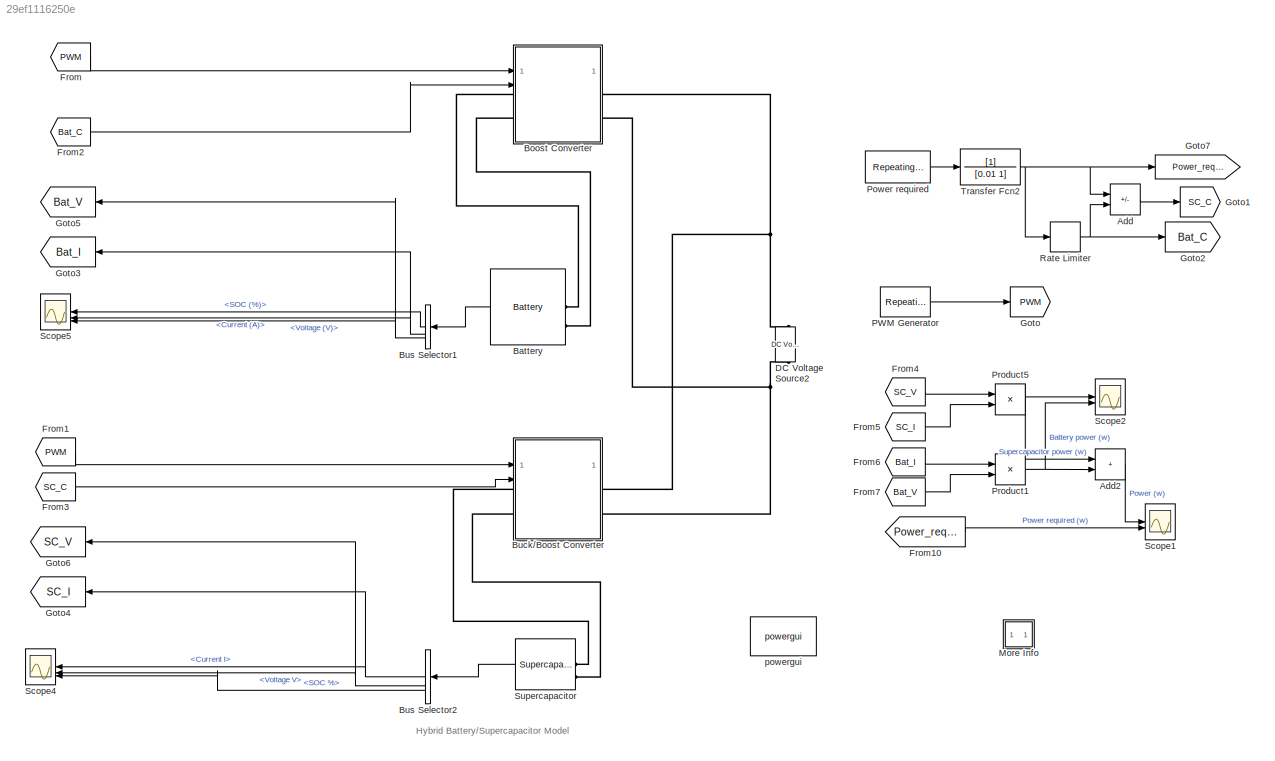
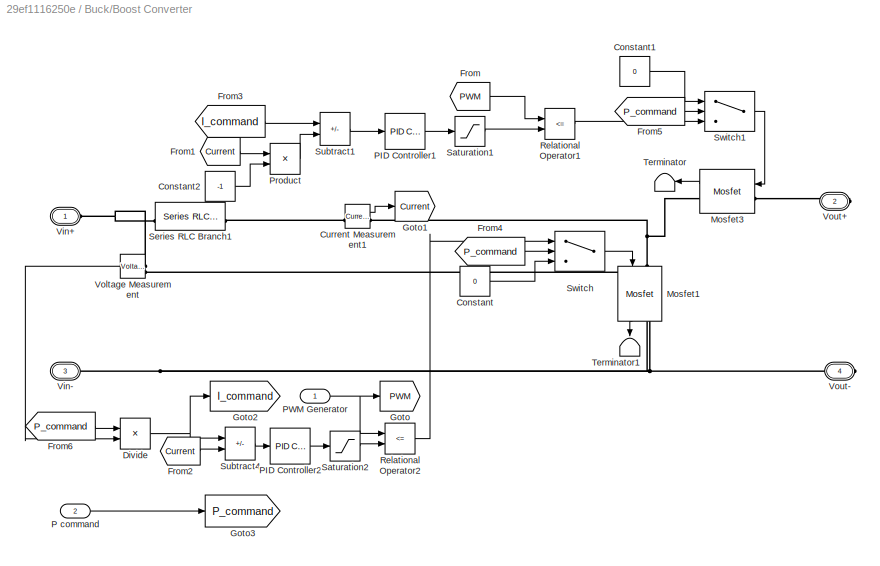
MODEL slx_29ef1116250e
KIND model
CONFIG AbsTol = auto
CONFIG EnableMultiTasking = on
CONFIG FixedStep = auto
CONFIG MaxStep = auto
CONFIG MinStep = auto
CONFIG RelTol = 1e-3
CONFIG SampleTimeConstraint = Unconstrained
CONFIG SolverName = ode23s
CONFIG StartTime = 0.0
CONFIG StopTime = 2000
BLOCK [Sum] Add
  IconShape = rectangular
  Inputs = +-
BLOCK [Sum] Add2
  IconShape = rectangular
BLOCK [Reference] Battery  REF=spsBatteryLib/Battery
  LibrarySourceBlock = electricdrivelib/Extra Sources/Battery
  SourceBlock = spsBatteryLib/Battery
  SourceType = Battery
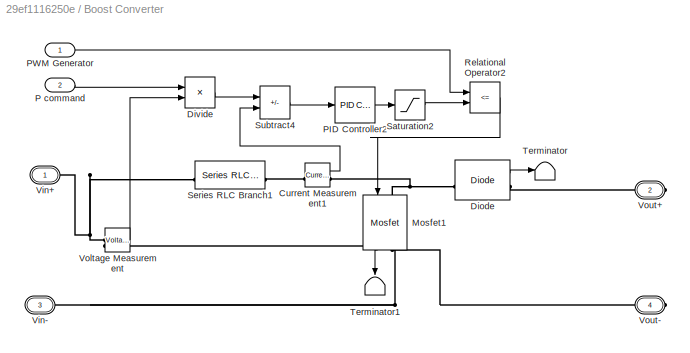
BLOCK [SubSystem] Boost Converter
BLOCK [Reference] Boost Converter/Current Measurement1  REF=spsCurrentMeasurementLib/Current Measurement
  LibrarySourceBlock = sps_lib/Sensors and Measurements/Current Measurement
  SourceBlock = spsCurrentMeasurementLib/Current Measurement
  SourceType = Current Measurement
BLOCK [Reference] Boost Converter/Diode  REF=spsDiodeLib/Diode
  LibrarySourceBlock = sps_lib/Power Electronics/Diode
  SourceBlock = spsDiodeLib/Diode
  SourceType = Diode
BLOCK [Product] Boost Converter/Divide
  Inputs = */
BLOCK [Reference] Boost Converter/Mosfet1  REF=spsMosfetLib/Mosfet
  LibrarySourceBlock = sps_lib/Power Electronics/Mosfet
  NameLocation = left
  SourceBlock = spsMosfetLib/Mosfet
  SourceType = Mosfet
BLOCK [Inport] Boost Converter/P command
  Port = 2
BLOCK [Reference] Boost Converter/PID Controller2  REF=slpidlib/PID Controller
  SourceBlock = slpidlib/PID Controller
  SourceType = PID 1dof
BLOCK [Inport] Boost Converter/PWM Generator
BLOCK [RelationalOperator] Boost Converter/Relational Operator2
  InputSameDT = off
  Operator = <=
  OutDataTypeStr = boolean
BLOCK [Saturate] Boost Converter/Saturation2
  LowerLimit = -1
  UpperLimit = 1
BLOCK [Reference] Boost Converter/Series RLC Branch1  REF=spsSeriesRLCBranchLib/Series RLC Branch
  LibrarySourceBlock = sps_lib/Passives/Series RLC Branch
  SourceBlock = spsSeriesRLCBranchLib/Series RLC Branch
  SourceType = Series RLC Branch
BLOCK [Sum] Boost Converter/Subtract4
  IconShape = rectangular
  Inputs = +-
BLOCK [Terminator] Boost Converter/Terminator
BLOCK [Terminator] Boost Converter/Terminator1
  NameLocation = left
BLOCK [PMIOPort] Boost Converter/Vin+
  Side = Left
  Tag = PMCPort
BLOCK [PMIOPort] Boost Converter/Vin-
  Port = 3
  Side = Left
  Tag = PMCPort
BLOCK [Reference] Boost Converter/Voltage Measurement  REF=spsVoltageMeasurementLib/Voltage Measurement
  LibrarySourceBlock = sps_lib/Sensors and Measurements/Voltage Measurement
  SourceBlock = spsVoltageMeasurementLib/Voltage Measurement
  SourceType = Voltage Measurement
BLOCK [PMIOPort] Boost Converter/Vout+
  NameLocation = top
  Port = 2
  Side = Right
  Tag = PMCPort
BLOCK [PMIOPort] Boost Converter/Vout-
  NameLocation = top
  Port = 4
  Side = Right
  Tag = PMCPort
BLOCK [SubSystem] Buck//Boost Converter
BLOCK [Constant] Buck//Boost Converter/Constant
  Value = 0
BLOCK [Constant] Buck//Boost Converter/Constant1
  Value = 0
BLOCK [Constant] Buck//Boost Converter/Constant2
  Value = -1
BLOCK [Reference] Buck//Boost Converter/Current Measurement1  REF=spsCurrentMeasurementLib/Current Measurement
  LibrarySourceBlock = sps_lib/Sensors and Measurements/Current Measurement
  SourceBlock = spsCurrentMeasurementLib/Current Measurement
  SourceType = Current Measurement
BLOCK [Product] Buck//Boost Converter/Divide
  Inputs = */
BLOCK [From] Buck//Boost Converter/From
  GotoTag = PWM
BLOCK [From] Buck//Boost Converter/From1
  GotoTag = Current
BLOCK [From] Buck//Boost Converter/From2
  GotoTag = Current
BLOCK [From] Buck//Boost Converter/From3
  GotoTag = I_command
BLOCK [From] Buck//Boost Converter/From4
  GotoTag = P_command
BLOCK [From] Buck//Boost Converter/From5
  GotoTag = P_command
BLOCK [From] Buck//Boost Converter/From6
  GotoTag = P_command
BLOCK [Goto] Buck//Boost Converter/Goto
  GotoTag = PWM
BLOCK [Goto] Buck//Boost Converter/Goto1
  GotoTag = Current
BLOCK [Goto] Buck//Boost Converter/Goto2
  GotoTag = I_command
BLOCK [Goto] Buck//Boost Converter/Goto3
  GotoTag = P_command
BLOCK [Reference] Buck//Boost Converter/Mosfet1  REF=spsMosfetLib/Mosfet
  LibrarySourceBlock = sps_lib/Power Electronics/Mosfet
  NameLocation = left
  SourceBlock = spsMosfetLib/Mosfet
  SourceType = Mosfet
BLOCK [Reference] Buck//Boost Converter/Mosfet3  REF=spsMosfetLib/Mosfet
  LibrarySourceBlock = sps_lib/Power Electronics/Mosfet
  NameLocation = top
  SourceBlock = spsMosfetLib/Mosfet
  SourceType = Mosfet
BLOCK [Inport] Buck//Boost Converter/P command
  Port = 2
BLOCK [Reference] Buck//Boost Converter/PID Controller1  REF=slpidlib/PID Controller
  SourceBlock = slpidlib/PID Controller
  SourceType = PID 1dof
BLOCK [Reference] Buck//Boost Converter/PID Controller2  REF=slpidlib/PID Controller
  SourceBlock = slpidlib/PID Controller
  SourceType = PID 1dof
BLOCK [Inport] Buck//Boost Converter/PWM Generator
BLOCK [Product] Buck//Boost Converter/Product
  RndMeth = Zero
BLOCK [RelationalOperator] Buck//Boost Converter/Relational Operator1
  InputSameDT = off
  Operator = <=
  OutDataTypeStr = boolean
BLOCK [RelationalOperator] Buck//Boost Converter/Relational Operator2
  InputSameDT = off
  Operator = <=
  OutDataTypeStr = boolean
BLOCK [Saturate] Buck//Boost Converter/Saturation1
  LowerLimit = -1
  UpperLimit = 1
BLOCK [Saturate] Buck//Boost Converter/Saturation2
  LowerLimit = -1
  UpperLimit = 1
BLOCK [Reference] Buck//Boost Converter/Series RLC Branch1  REF=spsSeriesRLCBranchLib/Series RLC Branch
  LibrarySourceBlock = sps_lib/Passives/Series RLC Branch
  SourceBlock = spsSeriesRLCBranchLib/Series RLC Branch
  SourceType = Series RLC Branch
BLOCK [Sum] Buck//Boost Converter/Subtract1
  IconShape = rectangular
  Inputs = --
BLOCK [Sum] Buck//Boost Converter/Subtract4
  IconShape = rectangular
  Inputs = +-
BLOCK [Switch] Buck//Boost Converter/Switch
  Criteria = u2 > Threshold
  InputSameDT = off
  SaturateOnIntegerOverflow = off
BLOCK [Switch] Buck//Boost Converter/Switch1
  Criteria = u2 > Threshold
  InputSameDT = off
  SaturateOnIntegerOverflow = off
BLOCK [Terminator] Buck//Boost Converter/Terminator
  NameLocation = top
BLOCK [Terminator] Buck//Boost Converter/Terminator1
  NameLocation = left
BLOCK [PMIOPort] Buck//Boost Converter/Vin+
  Side = Left
  Tag = PMCPort
BLOCK [PMIOPort] Buck//Boost Converter/Vin-
  Port = 3
  Side = Left
  Tag = PMCPort
BLOCK [Reference] Buck//Boost Converter/Voltage Measurement  REF=spsVoltageMeasurementLib/Voltage Measurement
  LibrarySourceBlock = sps_lib/Sensors and Measurements/Voltage Measurement
  NameLocation = top
  SourceBlock = spsVoltageMeasurementLib/Voltage Measurement
  SourceType = Voltage Measurement
BLOCK [PMIOPort] Buck//Boost Converter/Vout+
  NameLocation = top
  Port = 2
  Side = Right
  Tag = PMCPort
BLOCK [PMIOPort] Buck//Boost Converter/Vout-
  NameLocation = top
  Port = 4
  Side = Right
  Tag = PMCPort
BLOCK [BusSelector] Bus Selector1
  OutputSignals = SOC (%),Current (A),Voltage (V)
BLOCK [BusSelector] Bus Selector2
  OutputSignals = Current I,Voltage V,SOC %
BLOCK [Reference] DC Voltage Source2  REF=spsDCVoltageSourceLib/DC Voltage Source
  LibrarySourceBlock = sps_lib/Sources/DC Voltage Source
  NameLocation = right
  SourceBlock = spsDCVoltageSourceLib/DC Voltage Source
  SourceType = DC Voltage Source
BLOCK [From] From
  GotoTag = PWM
BLOCK [From] From1
  GotoTag = PWM
BLOCK [From] From10
  GotoTag = Power_required
BLOCK [From] From2
  GotoTag = Bat_C
BLOCK [From] From3
  GotoTag = SC_C
BLOCK [From] From4
  GotoTag = SC_V
BLOCK [From] From5
  GotoTag = SC_I
BLOCK [From] From6
  GotoTag = Bat_I
BLOCK [From] From7
  GotoTag = Bat_V
BLOCK [Goto] Goto
  GotoTag = PWM
BLOCK [Goto] Goto1
  GotoTag = SC_C
BLOCK [Goto] Goto2
  GotoTag = Bat_C
BLOCK [Goto] Goto3
  GotoTag = Bat_I
  NameLocation = top
BLOCK [Goto] Goto4
  GotoTag = SC_I
  NameLocation = top
BLOCK [Goto] Goto5
  GotoTag = Bat_V
  NameLocation = top
BLOCK [Goto] Goto6
  GotoTag = SC_V
  NameLocation = top
BLOCK [Goto] Goto7
  GotoTag = Power_required
BLOCK [SubSystem] More Info
  OpenFcn = showdemo(bdroot(gcb))
BLOCK [Reference] PWM Generator  REF=simulink/Sources/Repeating
Sequence
  SourceBlock = simulink/Sources/Repeating\nSequence
  SourceType = Repeating table
BLOCK [Reference] Power required  REF=simulink/Sources/Repeating
Sequence
  SourceBlock = simulink/Sources/Repeating\nSequence
  SourceType = Repeating table
BLOCK [Product] Product1
  RndMeth = Zero
BLOCK [Product] Product5
  RndMeth = Zero
BLOCK [RateLimiter] Rate Limiter
  FallingSlewLimit = -300
  RisingSlewLimit = 300
  SampleTimeMode = inherited
BLOCK [Scope] Scope1
  Floating = off
  NameLocation = top
  NumInputPorts = 2
  ScopeSpecificationString = Simulink.scopes.TimeScopeBlockCfg('CurrentConfiguration', extmgr.ConfigurationSet(extmgr.Configuration('Core','General UI',true,'FigureColor',[1 1 1]),extmgr.Configuration('Core','Source UI',true),extmgr.Configuration('Sources','WiredSimulink',true,'DataLoggingSaveFormat','Array','DataLoggingDecimation','1','DataLoggingDecimateData',true),extmgr.Configuration('Visuals','Time Domain',true,'Serializ...<+2517ch>
BLOCK [Scope] Scope2
  Floating = off
  NameLocation = top
  NumInputPorts = 2
  ScopeSpecificationString = Simulink.scopes.TimeScopeBlockCfg('CurrentConfiguration', extmgr.ConfigurationSet(extmgr.Configuration('Core','General UI',true),extmgr.Configuration('Core','Source UI',true),extmgr.Configuration('Sources','WiredSimulink',true,'DataLoggingSaveFormat','Array','DataLoggingDecimation','1','DataLoggingDecimateData',true),extmgr.Configuration('Visuals','Time Domain',true,'SerializedDisplays',{struct('M...<+2301ch>
BLOCK [Scope] Scope4
  Floating = off
  NumInputPorts = 3
  ScopeSpecificationString = Simulink.scopes.TimeScopeBlockCfg('CurrentConfiguration', extmgr.ConfigurationSet(extmgr.Configuration('Core','General UI',true,'FigureColor',[1 1 1]),extmgr.Configuration('Core','Source UI',true),extmgr.Configuration('Sources','WiredSimulink',true,'DataLoggingSaveFormat','Array','DataLoggingDecimation','1','DataLoggingDecimateData',true),extmgr.Configuration('Visuals','Time Domain',true,'Serializ...<+3328ch>
BLOCK [Scope] Scope5
  Floating = off
  NumInputPorts = 3
  ScopeSpecificationString = Simulink.scopes.TimeScopeBlockCfg('CurrentConfiguration', extmgr.ConfigurationSet(extmgr.Configuration('Core','General UI',true,'FigureColor',[1 1 1]),extmgr.Configuration('Core','Source UI',true),extmgr.Configuration('Sources','WiredSimulink',true,'DataLoggingSaveFormat','Array','DataLoggingDecimation','1','DataLoggingDecimateData',true),extmgr.Configuration('Visuals','Time Domain',true,'Serializ...<+3703ch>
BLOCK [Reference] Supercapacitor  REF=spsSupercapacitorLib/Supercapacitor
  LibrarySourceBlock = electricdrivelib/Extra Sources/Supercapacitor
  SourceBlock = spsSupercapacitorLib/Supercapacitor
  SourceType = Supercapacitor
BLOCK [TransferFcn] Transfer Fcn2
  Denominator = [0.01 1]
BLOCK [Reference] powergui  REF=spspowerguiLib/powergui
  LibrarySourceBlock = sps_lib/powergui
  Priority = 1
  SourceBlock = spspowerguiLib/powergui
  SourceType = PSB option menu block
ANNOTATION (root): Hybrid Battery/Supercapacitor Model
LINE Add2:1 -> Scope1:1
LINE Add:1 -> Goto1:1
LINE Battery:1 -> Bus Selector1:1
LINE Boost Converter/Current Measurement1:1 -> Boost Converter/Subtract4:2
LINE Boost Converter/Diode:1 -> Boost Converter/Terminator:1
LINE Boost Converter/Divide:1 -> Boost Converter/Subtract4:1
LINE Boost Converter/Mosfet1:1 -> Boost Converter/Terminator1:1
LINE Boost Converter/P command:1 -> Boost Converter/Divide:1
LINE Boost Converter/PID Controller2:1 -> Boost Converter/Saturation2:1
LINE Boost Converter/PWM Generator:1 -> Boost Converter/Relational Operator2:1
LINE Boost Converter/Relational Operator2:1 -> Boost Converter/Mosfet1:1
LINE Boost Converter/Saturation2:1 -> Boost Converter/Relational Operator2:2
LINE Boost Converter/Subtract4:1 -> Boost Converter/PID Controller2:1
LINE Boost Converter/Voltage Measurement:1 -> Boost Converter/Divide:2
LINE Buck//Boost Converter/Constant1:1 -> Buck//Boost Converter/Switch1:1
LINE Buck//Boost Converter/Constant2:1 -> Buck//Boost Converter/Product:2
LINE Buck//Boost Converter/Constant:1 -> Buck//Boost Converter/Switch:3
LINE Buck//Boost Converter/Current Measurement1:1 -> Buck//Boost Converter/Goto1:1
NET Buck//Boost Converter/Divide:1 -> Buck//Boost Converter/Goto2:1, Buck//Boost Converter/Subtract4:1
LINE Buck//Boost Converter/From1:1 -> Buck//Boost Converter/Product:1
LINE Buck//Boost Converter/From2:1 -> Buck//Boost Converter/Subtract4:2
LINE Buck//Boost Converter/From3:1 -> Buck//Boost Converter/Subtract1:1
LINE Buck//Boost Converter/From4:1 -> Buck//Boost Converter/Switch:2
LINE Buck//Boost Converter/From5:1 -> Buck//Boost Converter/Switch1:2
LINE Buck//Boost Converter/From6:1 -> Buck//Boost Converter/Divide:1
LINE Buck//Boost Converter/From:1 -> Buck//Boost Converter/Relational Operator1:1
LINE Buck//Boost Converter/Mosfet1:1 -> Buck//Boost Converter/Terminator1:1
LINE Buck//Boost Converter/Mosfet3:1 -> Buck//Boost Converter/Terminator:1
LINE Buck//Boost Converter/P command:1 -> Buck//Boost Converter/Goto3:1
LINE Buck//Boost Converter/PID Controller1:1 -> Buck//Boost Converter/Saturation1:1
LINE Buck//Boost Converter/PID Controller2:1 -> Buck//Boost Converter/Saturation2:1
NET Buck//Boost Converter/PWM Generator:1 -> Buck//Boost Converter/Goto:1, Buck//Boost Converter/Relational Operator2:1
LINE Buck//Boost Converter/Product:1 -> Buck//Boost Converter/Subtract1:2
LINE Buck//Boost Converter/Relational Operator1:1 -> Buck//Boost Converter/Switch1:3
LINE Buck//Boost Converter/Relational Operator2:1 -> Buck//Boost Converter/Switch:1
LINE Buck//Boost Converter/Saturation1:1 -> Buck//Boost Converter/Relational Operator1:2
LINE Buck//Boost Converter/Saturation2:1 -> Buck//Boost Converter/Relational Operator2:2
LINE Buck//Boost Converter/Subtract1:1 -> Buck//Boost Converter/PID Controller1:1
LINE Buck//Boost Converter/Subtract4:1 -> Buck//Boost Converter/PID Controller2:1
LINE Buck//Boost Converter/Switch1:1 -> Buck//Boost Converter/Mosfet3:1
LINE Buck//Boost Converter/Switch:1 -> Buck//Boost Converter/Mosfet1:1
LINE Buck//Boost Converter/Voltage Measurement:1 -> Buck//Boost Converter/Divide:2
LINE Bus Selector1:1 -> Scope5:1
NET Bus Selector1:2 -> Goto3:1, Scope5:2
NET Bus Selector1:3 -> Goto5:1, Scope5:3
NET Bus Selector2:1 -> Goto4:1, Scope4:1
NET Bus Selector2:2 -> Goto6:1, Scope4:2
LINE Bus Selector2:3 -> Scope4:3
LINE From10:1 -> Scope1:2
LINE From1:1 -> Buck//Boost Converter:1
LINE From2:1 -> Boost Converter:2
LINE From3:1 -> Buck//Boost Converter:2
LINE From4:1 -> Product5:1
LINE From5:1 -> Product5:2
LINE From6:1 -> Product1:1
LINE From7:1 -> Product1:2
LINE From:1 -> Boost Converter:1
LINE PWM Generator:1 -> Goto:1
LINE Power required:1 -> Transfer Fcn2:1
NET Product1:1 -> Add2:2, Scope2:2
NET Product5:1 -> Add2:1, Scope2:1
NET Rate Limiter:1 -> Add:2, Goto2:1
LINE Supercapacitor:1 -> Bus Selector2:1
NET Transfer Fcn2:1 -> Add:1, Goto7:1, Rate Limiter:1
PLINE Battery:LConn1 -- Boost Converter:LConn1
PLINE Battery:LConn2 -- Boost Converter:LConn2
PLINE Boost Converter/Current Measurement1:LConn1 -- Boost Converter/Series RLC Branch1:RConn1
PNET net1: Boost Converter/Current Measurement1:RConn1 -- Boost Converter/Diode:LConn1 -- Boost Converter/Mosfet1:LConn1
PLINE Boost Converter/Diode:RConn1 -- Boost Converter/Vout+:RConn1
PNET net2: Boost Converter/Mosfet1:RConn1 -- Boost Converter/Vin-:RConn1 -- Boost Converter/Voltage Measurement:LConn2 -- Boost Converter/Vout-:RConn1
PNET net3: Boost Converter/Series RLC Branch1:LConn1 -- Boost Converter/Vin+:RConn1 -- Boost Converter/Voltage Measurement:LConn1
PNET net4: Boost Converter:RConn1 -- Buck//Boost Converter:RConn1 -- DC Voltage Source2:RConn1
PNET net5: Boost Converter:RConn2 -- Buck//Boost Converter:RConn2 -- DC Voltage Source2:LConn1
PLINE Buck//Boost Converter/Current Measurement1:LConn1 -- Buck//Boost Converter/Series RLC Branch1:RConn1
PNET net6: Buck//Boost Converter/Current Measurement1:RConn1 -- Buck//Boost Converter/Mosfet1:LConn1 -- Buck//Boost Converter/Mosfet3:RConn1
PNET net7: Buck//Boost Converter/Mosfet1:RConn1 -- Buck//Boost Converter/Vin-:RConn1 -- Buck//Boost Converter/Voltage Measurement:LConn2 -- Buck//Boost Converter/Vout-:RConn1
PLINE Buck//Boost Converter/Mosfet3:LConn1 -- Buck//Boost Converter/Vout+:RConn1
PNET net8: Buck//Boost Converter/Series RLC Branch1:LConn1 -- Buck//Boost Converter/Vin+:RConn1 -- Buck//Boost Converter/Voltage Measurement:LConn1
PLINE Buck//Boost Converter:LConn1 -- Supercapacitor:LConn1
PLINE Buck//Boost Converter:LConn2 -- Supercapacitor:LConn2
note: NET lines group one-source signal fan-out (src -> all destinations, sorted); 1:1 wires keep LINE; PNET lines group multi-terminal physical nets as a canonical sorted terminal list (undirected conserving connections); 2-terminal nets keep the pairwise PLINE form
